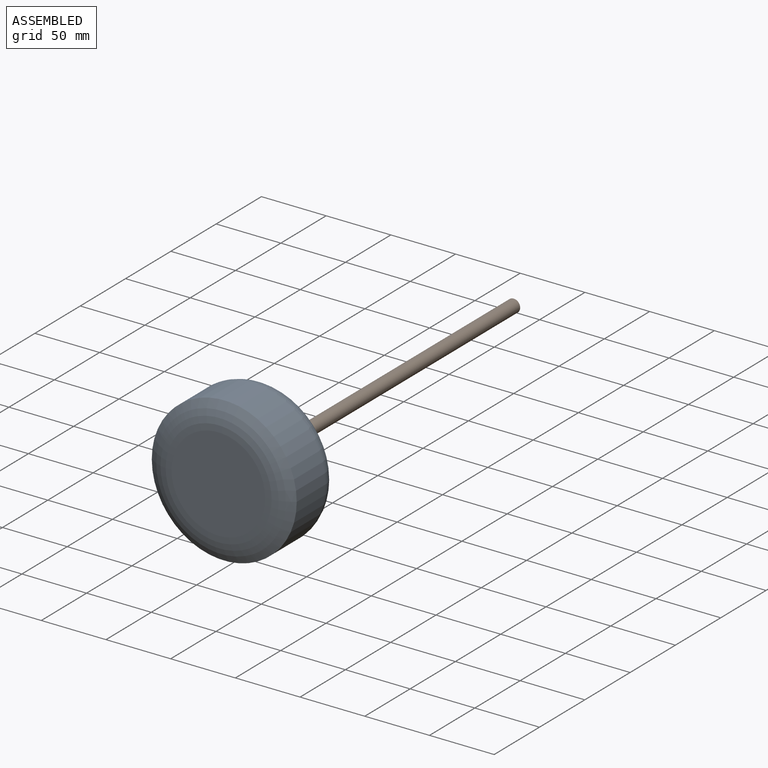
[diagram: assembled view]
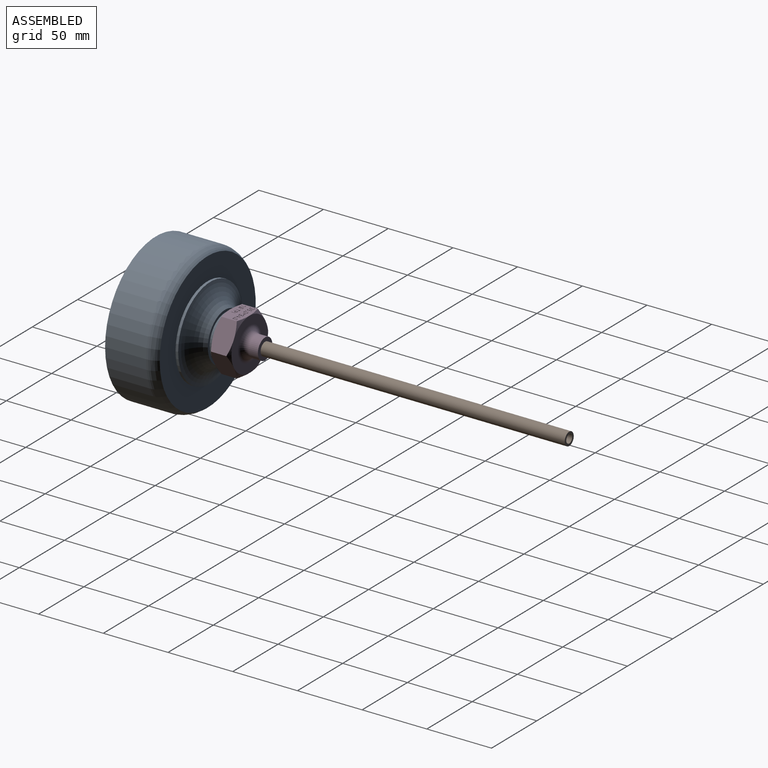
[diagram: assembled view, second angle]
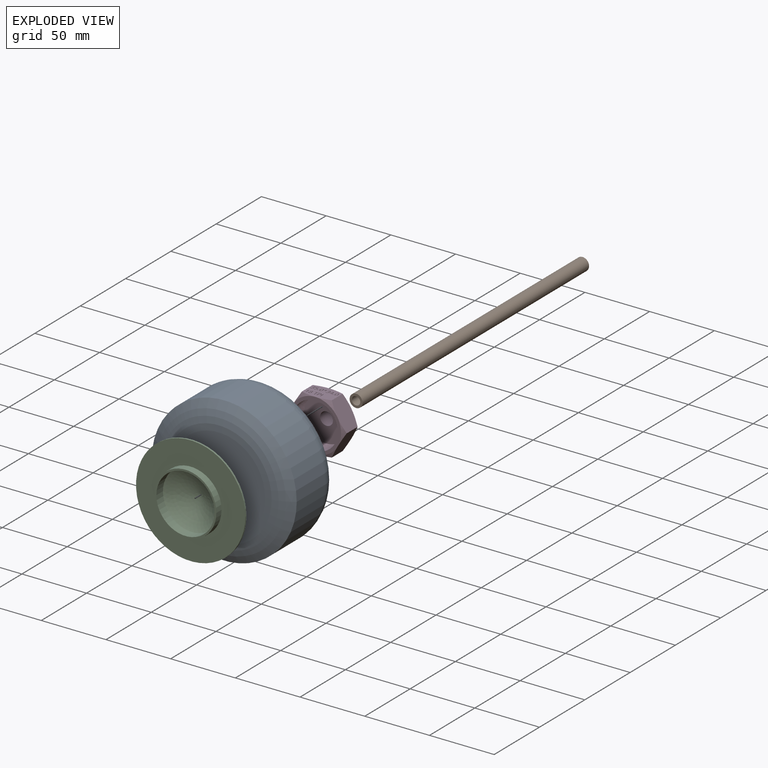
[diagram: exploded view]
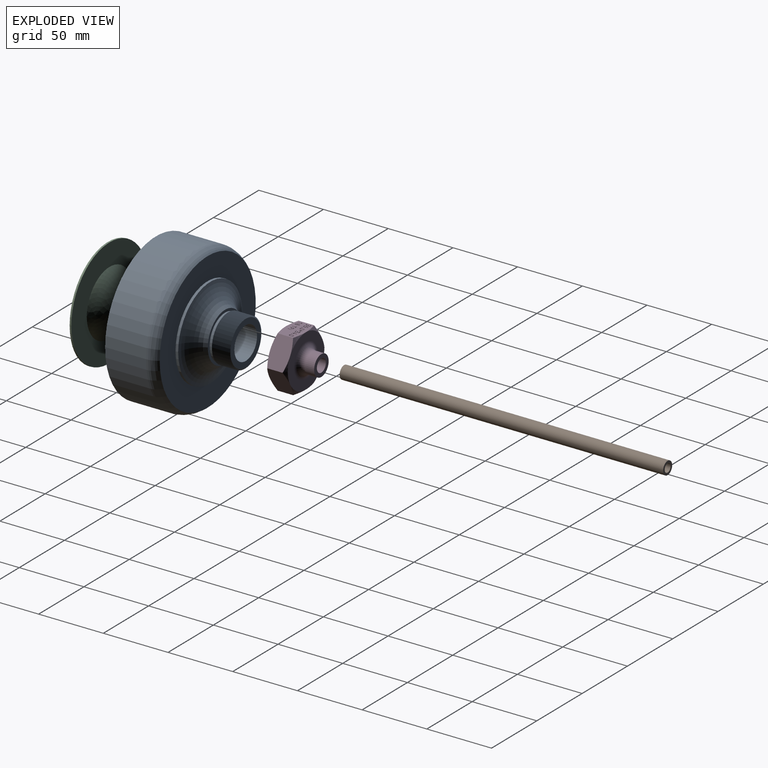
[diagram: exploded view, second angle]
ASSEMBLY  parts=4 mates=3
PART A: 54 faces, bbox 129.5x129.5x76 mm
  f0: cone r=17mm half-angle=63.4deg, axis (0,0,-1), area 122.9mm2, adj f1,f50
  f1: cone r=18mm half-angle=63.4deg, axis (0,0,1), area 122.9mm2, adj f0,f2
  f2: cone r=17mm half-angle=63.4deg, axis (0,0,-1), area 122.9mm2, adj f1,f3
  f3: cone r=18mm half-angle=63.4deg, axis (0,0,1), area 122.9mm2, adj f2,f4
  f4: cone r=17mm half-angle=63.4deg, axis (0,0,-1), area 122.9mm2, adj f3,f5
  f5: cone r=18mm half-angle=63.4deg, axis (0,0,1), area 122.9mm2, adj f4,f6
  f6: cone r=17mm half-angle=63.4deg, axis (0,0,-1), area 122.9mm2, adj f5,f7
  f7: cone r=18mm half-angle=63.4deg, axis (0,0,1), area 122.9mm2, adj f6,f8
  f8: cone r=17mm half-angle=63.4deg, axis (0,0,-1), area 122.9mm2, adj f7,f9
  f9: cone r=18mm half-angle=63.4deg, axis (0,0,1), area 122.9mm2, adj f8,f10
  f10: cone r=17mm half-angle=63.4deg, axis (0,0,-1), area 122.9mm2, adj f9,f11
  f11: cone r=18mm half-angle=63.4deg, axis (0,0,1), area 122.9mm2, adj f10,f12
  f12: cone r=17mm half-angle=63.4deg, axis (0,0,-1), area 122.9mm2, adj f11,f13
  f13: cone r=18mm half-angle=63.4deg, axis (0,0,1), area 122.9mm2, adj f12,f14
  f14: cone r=17mm half-angle=63.4deg, axis (0,0,-1), area 122.9mm2, adj f13,f15
  f15: cone r=18mm half-angle=63.4deg, axis (0,0,1), area 122.9mm2, adj f14,f16
  f16: cone r=17mm half-angle=63.4deg, axis (0,0,-1), area 122.9mm2, adj f15,f17
  f17: plane 34x34mm, normal (0,0,1), area 417mm2, adj f16,f18
  f18: cylinder r=12.5mm len=25.35mm, axis (0,0,1), area 1990.6mm2, adj f17,f19
  f19: torus R=4.05mm, axis (0,0,1), area 2894.2mm2, adj f18,f20
  f20: plane 101.75x101.75mm, normal (0,0,-1), area 5129.1mm2, adj f19,f21
  f21: cylinder r=50.88mm len=101.75mm, axis (0,0,1), area 10727.6mm2, adj f20,f22
  f22: plane 101.75x101.75mm, normal (0,0,1), area 6098.7mm2, adj f21,f23
  f23: torus R=22.75mm, axis (0,0,1), area 558.2mm2, adj f22,f24
  f24: plane 93.68x93.68mm, normal (0,0,-1), area 5226.3mm2, adj f23,f25
  f25: cylinder r=46.84mm len=93.68mm, axis (0,0,1), area 7972.5mm2, adj f24,f26
  f26: plane 93.68x93.68mm, normal (0,0,1), area 4968.4mm2, adj f25,f27
  f27: cylinder r=24.75mm len=49.5mm, axis (0,0,1), area 1103.7mm2, adj f26,f28
  f28: plane 49.5x49.5mm, normal (0,0,1), area 470.3mm2, adj f27,f29
  f29: cylinder r=21.52mm len=43.03mm, axis (0,0,1), area 959.4mm2, adj f28,f30
  f30: plane 43.03x43.03mm, normal (0,0,1), area 1454.4mm2, adj f29
  f31: plane 72.33x72.33mm, normal (0,0,-1), area 4109.3mm2, adj f32
  f32: torus R=36.17mm, axis (0,0,1), area 6197.9mm2, adj f31,f33
  f33: cylinder r=56mm len=112mm, axis (0,0,1), area 11128.7mm2, adj f32,f34
  f34: torus R=42.73mm, axis (0,0,1), area 3160.8mm2, adj f33,f35
  f35: plane 105.94x105.94mm, normal (0,0,1), area 4860.5mm2, adj f34,f36
  f36: cylinder r=35.48mm len=70.95mm, axis (0,0,1), area 445.8mm2, adj f35,f37
  f37: torus R=37.99mm, axis (0,0,1), area 3443.4mm2, adj f36,f38
  f38: plane 38x38mm, normal (0,0,1), area 226.2mm2, adj f37,f39
  f39: cylinder r=17mm len=34mm, axis (0,0,1), area 213.6mm2, adj f38,f40
  f40: cone r=18mm half-angle=63.4deg, axis (0,0,1), area 122.9mm2, adj f39,f41
  f41: cone r=17mm half-angle=63.4deg, axis (0,0,-1), area 122.9mm2, adj f40,f42
  f42: cone r=18mm half-angle=63.4deg, axis (0,0,1), area 122.9mm2, adj f41,f43
  f43: cone r=17mm half-angle=63.4deg, axis (0,0,-1), area 122.9mm2, adj f42,f44
  f44: cone r=18mm half-angle=63.4deg, axis (0,0,1), area 122.9mm2, adj f43,f45
  f45: cone r=17mm half-angle=63.4deg, axis (0,0,-1), area 122.9mm2, adj f44,f46
  f46: cone r=18mm half-angle=63.4deg, axis (0,0,1), area 122.9mm2, adj f45,f47
  f47: cone r=17mm half-angle=63.4deg, axis (0,0,-1), area 122.9mm2, adj f46,f48
  f48: cone r=18mm half-angle=63.4deg, axis (0,0,1), area 122.9mm2, adj f47,f49
  f49: cone r=17mm half-angle=63.4deg, axis (0,0,-1), area 122.9mm2, adj f48,f50
  f50: cone r=18mm half-angle=63.4deg, axis (0,0,1), area 122.9mm2, adj f0,f49
  f51: plane 44.92x44.92mm, normal (0,0,-1), area 1585mm2, adj f52
  f52: torus R=22.75mm, axis (0,0,1), area 478.1mm2, adj f51,f53
  f53: plane 40.11x40.11mm, normal (0,0,1), area 1263.8mm2, adj f52
PART B: 4 faces, bbox 10x10x250 mm
  f0: cylinder r=3.25mm len=250mm, axis (0,0,1), area 5105.1mm2, adj f1,f2
  f1: plane 10x10mm, normal (0,0,-1), area 45.4mm2, adj f0,f3
  f2: plane 10x10mm, normal (0,0,1), area 45.4mm2, adj f0,f3
  f3: cylinder r=5mm len=250mm, axis (0,0,1), area 7854mm2, adj f1,f2
PART C: 8 faces, bbox 185x185x107.8 mm
  f0: plane 184.99x184.99mm, normal (0,0,1), area 3613.9mm2, adj f1,f7
  f1: revolved ~50.28x25.14mm, area 0mm2, adj f0
  f2: revolved ~44.96x22.48mm, area 0mm2, adj f3
  f3: cylinder r=22.48mm len=44.96mm, axis (0,0,1), area 1024mm2, adj f2,f4
  f4: plane 47.71x47.71mm, normal (0,0,-1), area 200.2mm2, adj f3,f5
  f5: cylinder r=23.85mm len=47.71mm, axis (0,0,1), area 863.8mm2, adj f4,f6
  f6: plane 84.44x84.44mm, normal (0,0,-1), area 3811.7mm2, adj f5,f7
  f7: cylinder r=42.22mm len=84.44mm, axis (0,0,1), area 341.1mm2, adj f0,f6
PART D: 272 faces, bbox 46.6x46.6x28.6 mm
  f0: plane 23.11x15.52mm, normal (0,-1,0), area 288.5mm2, adj f14,f16,f23,f24,f25,f29,f30,f31
  f1: plane 40x40mm, normal (0,0,-1), area 294.5mm2, adj f4,f6,f13,f14,f17,f19,f21,f23
  f2: plane 40x40mm, normal (0,0,1), area 725.7mm2, adj f12,f15,f16,f18,f20,f22,f24
  f3: cylinder r=17mm len=34mm, axis (0,0,1), area 0.7mm2, adj f4,f5,f7,f8
  f4: cone r=17.5mm half-angle=5.7deg, axis (0,0,-1), area 178.8mm2, adj f1,f3,f5,f7
  f5: bspline ~40.41x35mm, area 519mm2, adj f3,f4,f6,f8
  f6: cylinder r=17.5mm len=35mm, axis (0,0,-1), area 462.4mm2, adj f1,f5,f7,f8
  f7: bspline ~40.41x35mm, area 519.9mm2, adj f3,f4,f6,f8
  f8: plane 35.24x34.96mm, normal (0,0,-1), area 866mm2, adj f3,f5,f6,f7,f9
  f9: cylinder r=5mm len=15mm, axis (0,0,-1), area 471.2mm2, adj f8,f11
  f10: cylinder r=8mm len=16mm, axis (0,0,-1), area 351.9mm2, adj f11,f12
  f11: plane 16x16mm, normal (0,0,1), area 122.5mm2, adj f9,f10
  f12: torus R=13mm, axis (0,0,1), area 484.4mm2, adj f2,f10
  f13: cone r=33.42mm half-angle=60deg, axis (0,0,1), area 24.8mm2, adj f1,f25,f26
  f14: cone r=33.42mm half-angle=60deg, axis (0,0,1), area 24.8mm2, adj f0,f1,f25
  f15: cone r=33.42mm half-angle=60deg, axis (0,0,-1), area 24.8mm2, adj f2,f25,f26
  f16: cone r=33.42mm half-angle=60deg, axis (0,0,-1), area 24.8mm2, adj f0,f2,f25
  f17: cone r=33.42mm half-angle=60deg, axis (0,0,1), area 24.8mm2, adj f1,f26,f27
  f18: cone r=33.42mm half-angle=60deg, axis (0,0,-1), area 24.8mm2, adj f2,f26,f27
  f19: cone r=33.42mm half-angle=60deg, axis (0,0,1), area 24.8mm2, adj f1,f27,f28
  f20: cone r=33.42mm half-angle=60deg, axis (0,0,-1), area 24.8mm2, adj f2,f27,f28
  f21: cone r=33.42mm half-angle=60deg, axis (0,0,1), area 24.8mm2, adj f1,f28,f29
  f22: cone r=33.42mm half-angle=60deg, axis (0,0,-1), area 24.8mm2, adj f2,f28,f29
  f23: cone r=33.42mm half-angle=60deg, axis (0,0,1), area 24.8mm2, adj f0,f1,f29
  f24: cone r=33.42mm half-angle=60deg, axis (0,0,-1), area 24.8mm2, adj f0,f2,f29
  f25: plane 20x15.51mm, normal (-0.87,-0.5,0), area 329.7mm2, adj f0,f13,f14,f15,f16,f26
  f26: plane 20x15.51mm, normal (-0.87,0.5,0), area 329.7mm2, adj f13,f15,f17,f18,f25,f27
  f27: plane 23.11x15.52mm, normal (0,1,0), area 329.7mm2, adj f17,f18,f19,f20,f26,f28
  f28: plane 20x15.51mm, normal (0.87,0.5,0), area 329.7mm2, adj f19,f20,f21,f22,f27,f29
  f29: plane 20x15.51mm, normal (0.87,-0.5,0), area 329.7mm2, adj f0,f21,f22,f23,f24,f28
  f30: extruded ~0.52x0.5mm, area 0.3mm2, adj f0,f31,f57,f58
  f31: extruded ~0.61x0.5mm, area 0.3mm2, adj f0,f30,f32,f58
  f32: extruded ~0.75x0.5mm, area 0.4mm2, adj f0,f31,f33,f58
  f33: extruded ~0.56x0.5mm, area 0.3mm2, adj f0,f32,f34,f58
  f34: extruded ~0.5x0.47mm, area 0.3mm2, adj f0,f33,f35,f58
  f35: plane 0.5x0.25mm, normal (0.8,0,0.6), area 0.2mm2, adj f0,f34,f36,f58
  f36: extruded ~0.5x0.44mm, area 0.2mm2, adj f0,f35,f37,f58
  f37: extruded ~0.5x0.41mm, area 0.2mm2, adj f0,f36,f38,f58
  f38: extruded ~0.5x0.45mm, area 0.2mm2, adj f0,f37,f39,f58
  f39: extruded ~0.5x0.38mm, area 0.2mm2, adj f0,f38,f40,f58
  f40: extruded ~0.5x0.48mm, area 0.3mm2, adj f0,f39,f41,f58
  f41: extruded ~0.62x0.5mm, area 0.3mm2, adj f0,f40,f42,f58
  f42: plane 0.5x0.33mm, normal (0,0,-1), area 0.2mm2, adj f0,f41,f43,f58
  f43: plane 0.5x0.32mm, normal (1,0,0), area 0.2mm2, adj f0,f42,f44,f58
  f44: plane 0.5x0.33mm, normal (0,0,1), area 0.2mm2, adj f0,f43,f45,f58
  f45: extruded ~0.95x0.61mm, area 0.6mm2, adj f0,f44,f46,f58
  f46: extruded ~0.86x0.68mm, area 0.6mm2, adj f0,f45,f47,f58
  f47: extruded ~0.5x0.46mm, area 0.2mm2, adj f0,f46,f48,f58
  f48: extruded ~0.5x0.46mm, area 0.2mm2, adj f0,f47,f49,f58
  f49: plane 0.5x0.36mm, normal (1,0,0), area 0.2mm2, adj f0,f48,f50,f58
  f50: extruded ~0.5x0.43mm, area 0.2mm2, adj f0,f49,f51,f58
  f51: extruded ~0.5x0.48mm, area 0.2mm2, adj f0,f50,f52,f58
  f52: extruded ~0.94x0.5mm, area 0.5mm2, adj f0,f51,f53,f58
  f53: extruded ~0.73x0.5mm, area 0.4mm2, adj f0,f52,f54,f58
  f54: extruded ~0.54x0.5mm, area 0.3mm2, adj f0,f53,f55,f58
  f55: extruded ~0.59x0.5mm, area 0.3mm2, adj f0,f54,f56,f58
  f56: plane 0.5x0.02mm, normal (-1,0,0), area 0mm2, adj f0,f55,f57,f58
  f57: extruded ~0.51x0.5mm, area 0.3mm2, adj f0,f30,f56,f58
  f58: plane 3.42x2.18mm, normal (0,-1,0), area 2.6mm2, adj f30,f31,f32,f33,f34,f35,f36,f37
  f59: extruded ~0.5x0.45mm, area 0.2mm2, adj f60,f89,f90,f267
  f60: extruded ~0.5x0.45mm, area 0.2mm2, adj f59,f61,f90,f267
  f61: extruded ~0.5x0.37mm, area 0.2mm2, adj f60,f62,f90,f267
  f62: extruded ~0.5x0.37mm, area 0.2mm2, adj f61,f63,f90,f267
  f63: extruded ~0.5x0.46mm, area 0.3mm2, adj f62,f64,f90,f267
  f64: extruded ~0.5x0.5mm, area 0.3mm2, adj f63,f65,f90,f267
  f65: extruded ~0.5x0.36mm, area 0.2mm2, adj f64,f89,f90,f267
  f66: extruded ~0.5x0.43mm, area 0.2mm2, adj f67,f87,f90,f91
  f67: extruded ~0.5x0.42mm, area 0.2mm2, adj f66,f68,f90,f91
  f68: extruded ~0.5x0.49mm, area 0.3mm2, adj f67,f69,f90,f91
  f69: extruded ~0.62x0.5mm, area 0.4mm2, adj f68,f70,f90,f91
  f70: extruded ~0.5x0.39mm, area 0.2mm2, adj f69,f71,f90,f91
  f71: extruded ~0.5x0.44mm, area 0.2mm2, adj f70,f72,f90,f91
  f72: extruded ~0.53x0.5mm, area 0.3mm2, adj f71,f87,f90,f91
  f73: extruded ~0.72x0.5mm, area 0.4mm2, adj f0,f74,f88,f90
  f74: extruded ~0.72x0.5mm, area 0.4mm2, adj f0,f73,f75,f90
  f75: extruded ~0.58x0.5mm, area 0.3mm2, adj f0,f74,f76,f90
  f76: extruded ~0.5x0.46mm, area 0.2mm2, adj f0,f75,f77,f90
  f77: extruded ~0.5x0.45mm, area 0.3mm2, adj f0,f76,f78,f90
  f78: extruded ~0.89x0.7mm, area 0.6mm2, adj f0,f77,f79,f90
  f79: extruded ~0.66x0.5mm, area 0.4mm2, adj f0,f78,f80,f90
  f80: extruded ~0.82x0.5mm, area 0.4mm2, adj f0,f79,f81,f90
  f81: extruded ~0.79x0.5mm, area 0.4mm2, adj f0,f80,f82,f90
  f82: extruded ~0.66x0.5mm, area 0.4mm2, adj f0,f81,f83,f90
  f83: extruded ~0.5x0.49mm, area 0.3mm2, adj f0,f82,f84,f90
  f84: extruded ~0.58x0.5mm, area 0.4mm2, adj f0,f83,f85,f90
  f85: extruded ~0.5x0.49mm, area 0.3mm2, adj f0,f84,f86,f90
  f86: extruded ~0.5x0.45mm, area 0.2mm2, adj f0,f85,f88,f90
  f87: extruded ~0.53x0.5mm, area 0.3mm2, adj f66,f72,f90,f91
  f88: extruded ~0.58x0.5mm, area 0.3mm2, adj f0,f73,f86,f90
  f89: extruded ~0.5x0.36mm, area 0.2mm2, adj f59,f65,f90,f267
  f90: plane 3.42x2.19mm, normal (0,-1,0), area 3.3mm2, adj f59,f60,f61,f62,f63,f64,f65,f66
  f91: plane 1.44x1.32mm, normal (0,-1,0), area 1.4mm2, adj f66,f67,f68,f69,f70,f71,f72,f87
  f92: extruded ~1.06x0.5mm, area 0.5mm2, adj f93,f107,f108,f268
  f93: extruded ~1.05x0.5mm, area 0.5mm2, adj f92,f94,f108,f268
  f94: extruded ~0.54x0.5mm, area 0.3mm2, adj f93,f95,f108,f268
  f95: extruded ~0.55x0.5mm, area 0.3mm2, adj f94,f96,f108,f268
  f96: extruded ~1.05x0.5mm, area 0.5mm2, adj f95,f97,f108,f268
  f97: extruded ~1.05x0.5mm, area 0.5mm2, adj f96,f98,f108,f268
  f98: extruded ~0.55x0.5mm, area 0.3mm2, adj f97,f107,f108,f268
  f99: extruded ~1.29x0.5mm, area 0.7mm2, adj f0,f100,f106,f108
  f100: extruded ~1.27x0.5mm, area 0.7mm2, adj f0,f99,f101,f108
  f101: extruded ~0.82x0.5mm, area 0.5mm2, adj f0,f100,f102,f108
  f102: extruded ~0.83x0.5mm, area 0.5mm2, adj f0,f101,f103,f108
  f103: extruded ~1.29x0.5mm, area 0.7mm2, adj f0,f102,f104,f108
  f104: extruded ~1.28x0.5mm, area 0.7mm2, adj f0,f103,f105,f108
  f105: extruded ~0.82x0.5mm, area 0.5mm2, adj f0,f104,f106,f108
  f106: extruded ~0.83x0.5mm, area 0.5mm2, adj f0,f99,f105,f108
  f107: extruded ~0.54x0.5mm, area 0.3mm2, adj f92,f98,f108,f268
  f108: plane 3.42x2.2mm, normal (0,-1,0), area 2.9mm2, adj f92,f93,f94,f95,f96,f97,f98,f99
  f109: plane 1.11x0.5mm, normal (1,0,0), area 0.6mm2, adj f110,f125,f126,f269
  f110: plane 1.24x0.5mm, normal (0,0,-1), area 0.6mm2, adj f109,f111,f126,f269
  f111: plane 1.48x1.04mm, normal (-0.82,0,0.58), area 0.9mm2, adj f110,f112,f126,f269
  f112: extruded ~0.5x0.36mm, area 0.2mm2, adj f111,f113,f126,f269
  f113: plane 0.5x0.02mm, normal (0,0,1), area 0mm2, adj f112,f125,f126,f269
  f114: plane 0.5x0.49mm, normal (0,0,1), area 0.2mm2, adj f0,f115,f124,f126
  f115: plane 0.5x0.34mm, normal (-1,0,0), area 0.2mm2, adj f0,f114,f116,f126
  f116: plane 0.5x0.49mm, normal (0,0,-1), area 0.2mm2, adj f0,f115,f117,f126
  f117: plane 2.24x0.5mm, normal (-1,0,0), area 1.1mm2, adj f0,f116,f118,f126
  f118: plane 0.5x0.4mm, normal (0,0,-1), area 0.2mm2, adj f0,f117,f119,f126
  f119: plane 2.25x1.58mm, normal (0.82,0,-0.57), area 1.4mm2, adj f0,f118,f120,f126
  f120: plane 0.5x0.33mm, normal (1,0,0), area 0.2mm2, adj f0,f119,f121,f126
  f121: plane 1.62x0.5mm, normal (0,0,1), area 0.8mm2, adj f0,f120,f122,f126
  f122: plane 0.76x0.5mm, normal (1,0,0), area 0.4mm2, adj f0,f121,f123,f126
  f123: plane 0.5x0.36mm, normal (0,0,1), area 0.2mm2, adj f0,f122,f124,f126
  f124: plane 0.76x0.5mm, normal (-1,0,0), area 0.4mm2, adj f0,f114,f123,f126
  f125: extruded ~0.73x0.5mm, area 0.4mm2, adj f109,f113,f126,f269
  f126: plane 3.34x2.47mm, normal (0,-1,0), area 2.7mm2, adj f109,f110,f111,f112,f113,f114,f115,f116
  f127: extruded ~1.06x0.5mm, area 0.5mm2, adj f128,f142,f143,f270
  f128: extruded ~1.05x0.5mm, area 0.5mm2, adj f127,f129,f143,f270
  f129: extruded ~0.54x0.5mm, area 0.3mm2, adj f128,f130,f143,f270
  f130: extruded ~0.55x0.5mm, area 0.3mm2, adj f129,f131,f143,f270
  f131: extruded ~1.05x0.5mm, area 0.5mm2, adj f130,f132,f143,f270
  f132: extruded ~1.05x0.5mm, area 0.5mm2, adj f131,f133,f143,f270
  f133: extruded ~0.55x0.5mm, area 0.3mm2, adj f132,f142,f143,f270
  f134: extruded ~1.29x0.5mm, area 0.7mm2, adj f0,f135,f141,f143
  f135: extruded ~1.27x0.5mm, area 0.7mm2, adj f0,f134,f136,f143
  f136: extruded ~0.82x0.5mm, area 0.5mm2, adj f0,f135,f137,f143
  f137: extruded ~0.83x0.5mm, area 0.5mm2, adj f0,f136,f138,f143
  f138: extruded ~1.29x0.5mm, area 0.7mm2, adj f0,f137,f139,f143
  f139: extruded ~1.28x0.5mm, area 0.7mm2, adj f0,f138,f140,f143
  f140: extruded ~0.82x0.5mm, area 0.5mm2, adj f0,f139,f141,f143
  f141: extruded ~0.83x0.5mm, area 0.5mm2, adj f0,f134,f140,f143
  f142: extruded ~0.54x0.5mm, area 0.3mm2, adj f127,f133,f143,f270
  f143: plane 3.42x2.2mm, normal (0,-1,0), area 2.9mm2, adj f127,f128,f129,f130,f131,f132,f133,f134
  f144: plane 0.5x0.35mm, normal (0,0,-1), area 0.2mm2, adj f145,f158,f159,f271
  f145: plane 1.35x0.5mm, normal (-1,0,0), area 0.7mm2, adj f144,f146,f159,f271
  f146: plane 0.5x0.43mm, normal (0,0,1), area 0.2mm2, adj f145,f147,f159,f271
  f147: extruded ~0.67x0.5mm, area 0.4mm2, adj f146,f148,f159,f271
  f148: extruded ~0.5x0.49mm, area 0.3mm2, adj f147,f149,f159,f271
  f149: extruded ~0.53x0.5mm, area 0.3mm2, adj f148,f158,f159,f271
  f150: extruded ~0.78x0.5mm, area 0.4mm2, adj f0,f151,f157,f159
  f151: extruded ~1.25x0.97mm, area 0.9mm2, adj f0,f150,f152,f159
  f152: plane 0.86x0.5mm, normal (0,0,-1), area 0.4mm2, adj f0,f151,f153,f159
  f153: plane 3.32x0.5mm, normal (1,0,0), area 1.7mm2, adj f0,f152,f154,f159
  f154: plane 0.5x0.39mm, normal (0,0,1), area 0.2mm2, adj f0,f153,f155,f159
  f155: plane 1.31x0.5mm, normal (-1,0,0), area 0.7mm2, adj f0,f154,f156,f159
  f156: plane 0.5x0.39mm, normal (0,0,1), area 0.2mm2, adj f0,f155,f157,f159
  f157: extruded ~0.99x0.5mm, area 0.5mm2, adj f0,f150,f156,f159
  f158: extruded ~0.74x0.5mm, area 0.4mm2, adj f144,f149,f159,f271
  f159: plane 3.32x2.11mm, normal (0,-1,0), area 2.7mm2, adj f144,f145,f146,f147,f148,f149,f150,f151
  f160: extruded ~0.83x0.5mm, area 0.4mm2, adj f0,f161,f178,f179
  f161: extruded ~0.52x0.5mm, area 0.3mm2, adj f0,f160,f162,f179
  f162: plane 1x0.5mm, normal (-1,0,0.08), area 0.5mm2, adj f0,f161,f163,f179
  f163: plane 1.33x0.5mm, normal (0,0,1), area 0.7mm2, adj f0,f162,f164,f179
  f164: plane 0.5x0.35mm, normal (-1,0,0), area 0.2mm2, adj f0,f163,f165,f179
  f165: plane 1.65x0.5mm, normal (0,0,-1), area 0.8mm2, adj f0,f164,f166,f179
  f166: plane 1.56x0.5mm, normal (1,0,-0.08), area 0.8mm2, adj f0,f165,f167,f179
  f167: plane 0.5x0.2mm, normal (0.54,0,0.84), area 0.1mm2, adj f0,f166,f168,f179
  f168: extruded ~0.58x0.5mm, area 0.3mm2, adj f0,f167,f169,f179
  f169: extruded ~0.85x0.7mm, area 0.6mm2, adj f0,f168,f170,f179
  f170: extruded ~0.55x0.5mm, area 0.3mm2, adj f0,f169,f171,f179
  f171: extruded ~0.62x0.5mm, area 0.3mm2, adj f0,f170,f172,f179
  f172: extruded ~0.5x0.47mm, area 0.2mm2, adj f0,f171,f173,f179
  f173: extruded ~0.5x0.4mm, area 0.2mm2, adj f0,f172,f174,f179
  f174: plane 0.5x0.36mm, normal (1,0,0), area 0.2mm2, adj f0,f173,f175,f179
  f175: extruded ~0.86x0.5mm, area 0.4mm2, adj f0,f174,f176,f179
  f176: extruded ~0.91x0.5mm, area 0.5mm2, adj f0,f175,f177,f179
  f177: extruded ~0.81x0.5mm, area 0.5mm2, adj f0,f176,f178,f179
  f178: extruded ~0.71x0.5mm, area 0.4mm2, adj f0,f160,f177,f179
  f179: plane 3.37x2.09mm, normal (0,-1,0), area 2.6mm2, adj f160,f161,f162,f163,f164,f165,f166,f167
  f180: extruded ~0.5x0.23mm, area 0.1mm2, adj f0,f181,f187,f188
  f181: extruded ~0.5x0.24mm, area 0.1mm2, adj f0,f180,f182,f188
  f182: extruded ~0.5x0.19mm, area 0.1mm2, adj f0,f181,f183,f188
  f183: extruded ~0.5x0.2mm, area 0.1mm2, adj f0,f182,f184,f188
  f184: extruded ~0.5x0.23mm, area 0.1mm2, adj f0,f183,f185,f188
  f185: extruded ~0.5x0.23mm, area 0.1mm2, adj f0,f184,f186,f188
  f186: extruded ~0.5x0.21mm, area 0.1mm2, adj f0,f185,f187,f188
  f187: extruded ~0.5x0.2mm, area 0.1mm2, adj f0,f180,f186,f188
  f188: plane 0.62x0.55mm, normal (0,-1,0), area 0.3mm2, adj f180,f181,f182,f183,f184,f185,f186,f187
  f189: plane 0.9x0.5mm, normal (-0.99,0,0.11), area 0.5mm2, adj f0,f190,f203,f204
  f190: plane 0.5x0.44mm, normal (0,0,-1), area 0.2mm2, adj f0,f189,f191,f204
  f191: plane 0.9x0.5mm, normal (0.99,0,0.11), area 0.5mm2, adj f0,f190,f192,f204
  f192: plane 0.89x0.5mm, normal (-0.27,0,-0.96), area 0.5mm2, adj f0,f191,f193,f204
  f193: plane 0.5x0.41mm, normal (0.99,0,-0.16), area 0.2mm2, adj f0,f192,f194,f204
  f194: plane 0.86x0.5mm, normal (0.08,0,1), area 0.4mm2, adj f0,f193,f195,f204
  f195: plane 0.74x0.55mm, normal (0.8,0,-0.6), area 0.5mm2, adj f0,f194,f196,f204
  f196: plane 0.5x0.4mm, normal (0.47,0,0.88), area 0.2mm2, adj f0,f195,f197,f204
  f197: plane 0.82x0.5mm, normal (-0.91,0,0.4), area 0.4mm2, adj f0,f196,f198,f204
  f198: plane 0.82x0.5mm, normal (0.9,0,0.44), area 0.5mm2, adj f0,f197,f199,f204
  f199: plane 0.5x0.39mm, normal (-0.48,0,0.88), area 0.2mm2, adj f0,f198,f200,f204
  f200: plane 0.74x0.56mm, normal (-0.8,0,-0.61), area 0.5mm2, adj f0,f199,f201,f204
  f201: plane 0.87x0.5mm, normal (-0.08,0,1), area 0.4mm2, adj f0,f200,f202,f204
  f202: plane 0.5x0.41mm, normal (-0.99,0,-0.14), area 0.2mm2, adj f0,f201,f203,f204
  f203: plane 0.91x0.5mm, normal (0.27,0,-0.96), area 0.5mm2, adj f0,f189,f202,f204
  f204: plane 2.17x2.09mm, normal (0,-1,0), area 1.7mm2, adj f189,f190,f191,f192,f193,f194,f195,f196
  f205: extruded ~0.52x0.5mm, area 0.3mm2, adj f0,f206,f232,f233
  f206: extruded ~0.61x0.5mm, area 0.3mm2, adj f0,f205,f207,f233
  f207: extruded ~0.75x0.5mm, area 0.4mm2, adj f0,f206,f208,f233
  f208: extruded ~0.56x0.5mm, area 0.3mm2, adj f0,f207,f209,f233
  f209: extruded ~0.5x0.47mm, area 0.3mm2, adj f0,f208,f210,f233
  f210: plane 0.5x0.25mm, normal (0.8,0,0.6), area 0.2mm2, adj f0,f209,f211,f233
  f211: extruded ~0.5x0.44mm, area 0.2mm2, adj f0,f210,f212,f233
  f212: extruded ~0.5x0.41mm, area 0.2mm2, adj f0,f211,f213,f233
  f213: extruded ~0.5x0.45mm, area 0.2mm2, adj f0,f212,f214,f233
  f214: extruded ~0.5x0.38mm, area 0.2mm2, adj f0,f213,f215,f233
  f215: extruded ~0.5x0.48mm, area 0.3mm2, adj f0,f214,f216,f233
  f216: extruded ~0.62x0.5mm, area 0.3mm2, adj f0,f215,f217,f233
  f217: plane 0.5x0.33mm, normal (0,0,-1), area 0.2mm2, adj f0,f216,f218,f233
  f218: plane 0.5x0.32mm, normal (1,0,0), area 0.2mm2, adj f0,f217,f219,f233
  f219: plane 0.5x0.33mm, normal (0,0,1), area 0.2mm2, adj f0,f218,f220,f233
  f220: extruded ~0.95x0.61mm, area 0.6mm2, adj f0,f219,f221,f233
  f221: extruded ~0.86x0.68mm, area 0.6mm2, adj f0,f220,f222,f233
  f222: extruded ~0.5x0.46mm, area 0.2mm2, adj f0,f221,f223,f233
  f223: extruded ~0.5x0.46mm, area 0.2mm2, adj f0,f222,f224,f233
  f224: plane 0.5x0.36mm, normal (1,0,0), area 0.2mm2, adj f0,f223,f225,f233
  f225: extruded ~0.5x0.43mm, area 0.2mm2, adj f0,f224,f226,f233
  f226: extruded ~0.5x0.48mm, area 0.2mm2, adj f0,f225,f227,f233
  f227: extruded ~0.94x0.5mm, area 0.5mm2, adj f0,f226,f228,f233
  f228: extruded ~0.73x0.5mm, area 0.4mm2, adj f0,f227,f229,f233
  f229: extruded ~0.54x0.5mm, area 0.3mm2, adj f0,f228,f230,f233
  f230: extruded ~0.59x0.5mm, area 0.3mm2, adj f0,f229,f231,f233
  f231: plane 0.5x0.02mm, normal (-1,0,0), area 0mm2, adj f0,f230,f232,f233
  f232: extruded ~0.51x0.5mm, area 0.3mm2, adj f0,f205,f231,f233
  f233: plane 3.42x2.18mm, normal (0,-1,0), area 2.6mm2, adj f205,f206,f207,f208,f209,f210,f211,f212
  f234: plane 3.32x0.5mm, normal (1,0,0), area 1.7mm2, adj f0,f235,f237,f238
  f235: plane 0.5x0.39mm, normal (0,0,1), area 0.2mm2, adj f0,f234,f236,f238
  f236: plane 3.32x0.5mm, normal (-1,0,0), area 1.7mm2, adj f0,f235,f237,f238
  f237: plane 0.5x0.39mm, normal (0,0,-1), area 0.2mm2, adj f0,f234,f236,f238
  f238: plane 3.32x0.39mm, normal (0,-1,0), area 1.3mm2, adj f234,f235,f236,f237
  f239: plane 0.5x0.39mm, normal (0,0,1), area 0.2mm2, adj f0,f240,f246,f247
  f240: plane 2.98x0.5mm, normal (-1,0,0), area 1.5mm2, adj f0,f239,f241,f247
  f241: plane 1.05x0.5mm, normal (0,0,1), area 0.5mm2, adj f0,f240,f242,f247
  f242: plane 0.5x0.34mm, normal (-1,0,0), area 0.2mm2, adj f0,f241,f243,f247
  f243: plane 2.49x0.5mm, normal (0,0,-1), area 1.2mm2, adj f0,f242,f244,f247
  f244: plane 0.5x0.34mm, normal (1,0,0), area 0.2mm2, adj f0,f243,f245,f247
  f245: plane 1.05x0.5mm, normal (0,0,1), area 0.5mm2, adj f0,f244,f246,f247
  f246: plane 2.98x0.5mm, normal (1,0,0), area 1.5mm2, adj f0,f239,f245,f247
  f247: plane 3.32x2.49mm, normal (0,-1,0), area 2mm2, adj f239,f240,f241,f242,f243,f244,f245,f246
  f248: plane 0.5x0.37mm, normal (0,0,1), area 0.2mm2, adj f0,f249,f256,f257
  f249: plane 3.32x0.5mm, normal (-1,0,0), area 1.7mm2, adj f0,f248,f250,f257
  f250: plane 0.5x0.32mm, normal (0,0,-1), area 0.2mm2, adj f0,f249,f251,f257
  f251: plane 0.88x0.68mm, normal (0.61,0,-0.79), area 0.6mm2, adj f0,f250,f252,f257
  f252: plane 0.5x0.26mm, normal (0.79,0,0.61), area 0.2mm2, adj f0,f251,f253,f257
  f253: extruded ~0.54x0.5mm, area 0.3mm2, adj f0,f252,f254,f257
  f254: extruded ~0.5x0.11mm, area 0.1mm2, adj f0,f253,f255,f257
  f255: extruded ~0.56x0.5mm, area 0.3mm2, adj f0,f254,f256,f257
  f256: plane 2.37x0.5mm, normal (1,0,0), area 1.2mm2, adj f0,f248,f255,f257
  f257: plane 3.32x1.2mm, normal (0,-1,0), area 1.5mm2, adj f248,f249,f250,f251,f252,f253,f254,f255
  f258: extruded ~0.5x0.23mm, area 0.1mm2, adj f0,f259,f265,f266
  f259: extruded ~0.5x0.24mm, area 0.1mm2, adj f0,f258,f260,f266
  f260: extruded ~0.5x0.19mm, area 0.1mm2, adj f0,f259,f261,f266
  f261: extruded ~0.5x0.2mm, area 0.1mm2, adj f0,f260,f262,f266
  f262: extruded ~0.5x0.23mm, area 0.1mm2, adj f0,f261,f263,f266
  f263: extruded ~0.5x0.23mm, area 0.1mm2, adj f0,f262,f264,f266
  f264: extruded ~0.5x0.21mm, area 0.1mm2, adj f0,f263,f265,f266
  f265: extruded ~0.5x0.2mm, area 0.1mm2, adj f0,f258,f264,f266
  f266: plane 0.62x0.55mm, normal (0,-1,0), area 0.3mm2, adj f258,f259,f260,f261,f262,f263,f264,f265
  f267: plane 1.23x1.16mm, normal (0,-1,0), area 1.1mm2, adj f59,f60,f61,f62,f63,f64,f65,f89
  f268: plane 2.77x1.43mm, normal (0,-1,0), area 3.3mm2, adj f92,f93,f94,f95,f96,f97,f98,f107
  f269: plane 1.84x1.26mm, normal (0,-1,0), area 1.1mm2, adj f109,f110,f111,f112,f113,f125
  f270: plane 2.77x1.43mm, normal (0,-1,0), area 3.3mm2, adj f127,f128,f129,f130,f131,f132,f133,f142
  f271: plane 1.35x1.32mm, normal (0,-1,0), area 1.6mm2, adj f144,f145,f146,f147,f148,f149,f158
PLACE A rot(axis=(-1,0,0),90deg) t=(0,0,0)mm
PLACE B rot(axis=(-0.58,-0.58,-0.58),120deg) t=(0,0,0)mm
PLACE C rot(axis=(-1,0,0),90deg) t=(0,0.08,0)mm
PLACE D rot(axis=(-1,0,0),90deg) t=(0,0,0)mm
MATE fastened D.f9 <-> A.f0  axis (0,-1,0) through (0,0,0)mm
MATE fastened C.f3 <-> A.f0  axis (0,1,0) through (0,-36.23,0)mm
MATE fastened D.f9 <-> B.f0  axis (0,-1,0) through (0,0,0)mm
